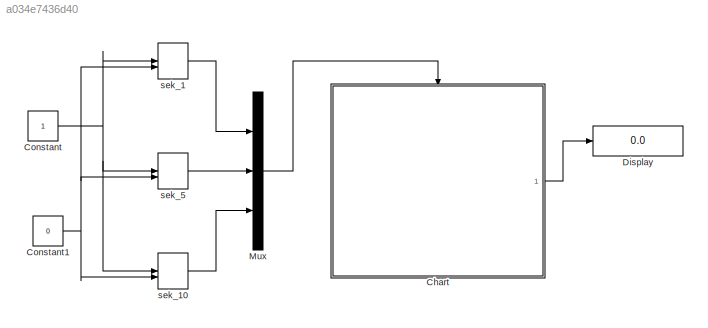
MODEL slx_a034e7436d40
KIND model
CONFIG AbsTol = auto
CONFIG EnableMultiTasking = off
CONFIG FixedStep = auto
CONFIG MaxStep = auto
CONFIG MinStep = auto
CONFIG RelTol = 1e-3
CONFIG SampleTimeConstraint = Unconstrained
CONFIG Solver = VariableStepAuto
CONFIG SolverName = VariableStepAuto
CONFIG StartTime = 0.0
CONFIG StopTime = 60
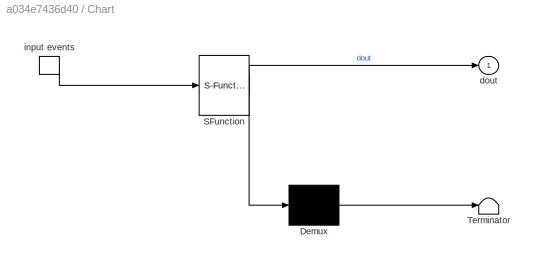
BLOCK [SubSystem] Chart
  BlockKeywords = __PRM__SERIALIZED__DATA__:Stateflow Chart,Stateflow Diagram
  ErrorFcn = Stateflow.Translate.translate
  PermitHierarchicalResolution = ExplicitOnly
  Ports = [0, 1, 0, 1]
  RequestExecContextInheritance = off
  SFBlockType = Chart
  TreatAsAtomicUnit = on
BLOCK [Demux] Chart/ Demux 
  Outputs = 1
  Ports = [1, 1]
BLOCK [S-Function] Chart/ SFunction 
  EnableBusSupport = on
  FunctionName = sf_sfun
  PortCounts = [1 2]
  Ports = [1, 2]
  SFcnIsStateOwnerBlock = off
  SFunctionDeploymentMode = off
  Tag = Stateflow S-Function Vending_1 3
BLOCK [Terminator] Chart/ Terminator 
BLOCK [Outport] Chart/dout
  IconDisplay = Port number
BLOCK [TriggerPort] Chart/input events
  Ports = [0, 1]
  ShowOutputPort = on
  StatesWhenEnabling = held
  VariantControl = (inherit)
BLOCK [Constant] Constant
BLOCK [Constant] Constant1
  Value = 0
BLOCK [Display] Display
  Decimation = 1
  Format = long
  Ports = [1]
BLOCK [Mux] Mux
  DisplayOption = bar
  Inputs = 3
  Ports = [3, 1]
BLOCK [ManualSwitch] sek_1
BLOCK [ManualSwitch] sek_10
BLOCK [ManualSwitch] sek_5
LINE Chart:1 -> Display:1
NET Constant1:1 -> sek_10:2, sek_1:2, sek_5:2
NET Constant:1 -> sek_10:1, sek_1:1, sek_5:1
LINE Mux:1 -> Chart:trigger
LINE sek_10:1 -> Mux:3
LINE sek_1:1 -> Mux:1
LINE sek_5:1 -> Mux:2
note: NET lines group one-source signal fan-out (src -> all destinations, sorted); 1:1 wires keep LINE
CHART Chart states=3 transitions=3
  STATE_LABEL 'VendingMachine\nen: money = 0;\n'
  STATE_LABEL 'MoneyCollector\non sek_1: money = money + 1;\n dout = money\non sek_5: money = money + 5;\n dout = money\non sek_10: money = money + 10;\n dout = money'
  STATE_LABEL 'SnackVendor\nif(money<6){\n    printf["Put more money!!!"]\n    )\nelseif (money>=6){\n    snack1\n    }'
  STATE_LABEL '[money>=6]'
  STATE_LABEL 'MoneyCollector\non sek_1: money = money + 1;\n dout = money\non sek_5: money = money + 5;\n dout = money\non sek_10: money = money + 10;\n dout = money'
  STATE_LABEL 'SnackVendor\nif(money<6){\n    printf["Put more money!!!"]\n    )\nelseif (money>=6){\n    snack1\n    }'
